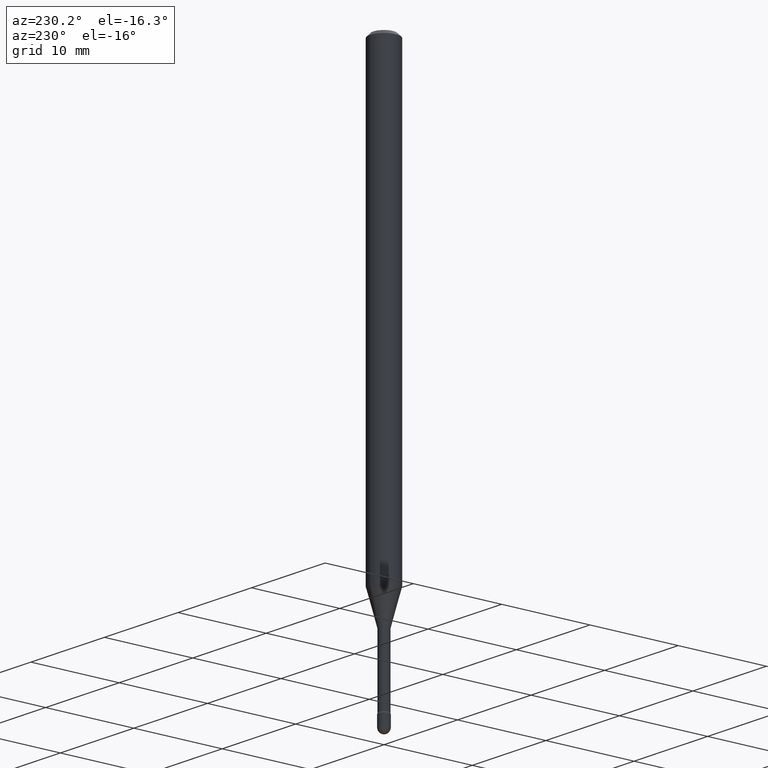
[diagram: clean part render]
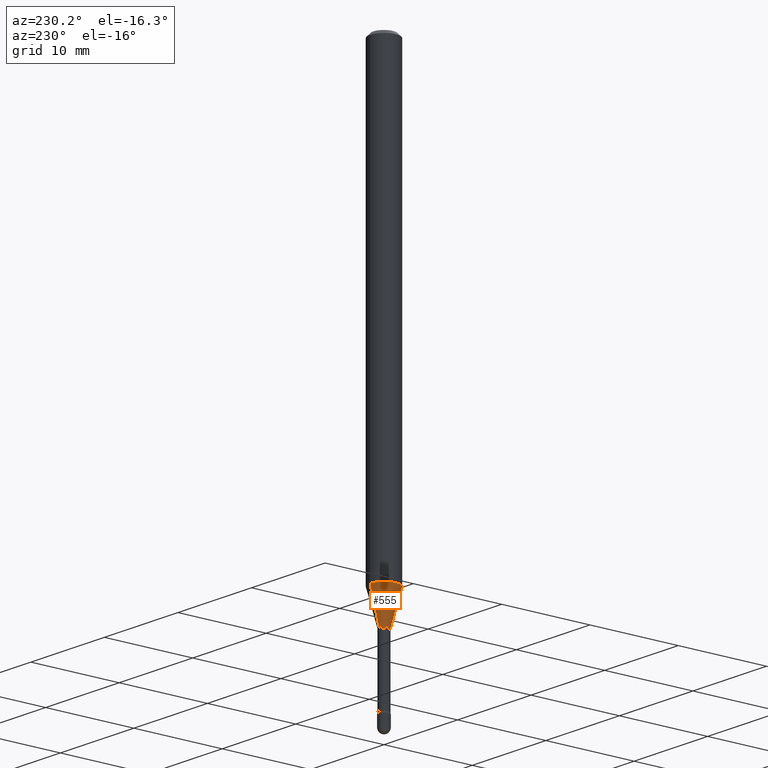
[diagram: same view with one face highlighted and labeled with its STEP entity id]
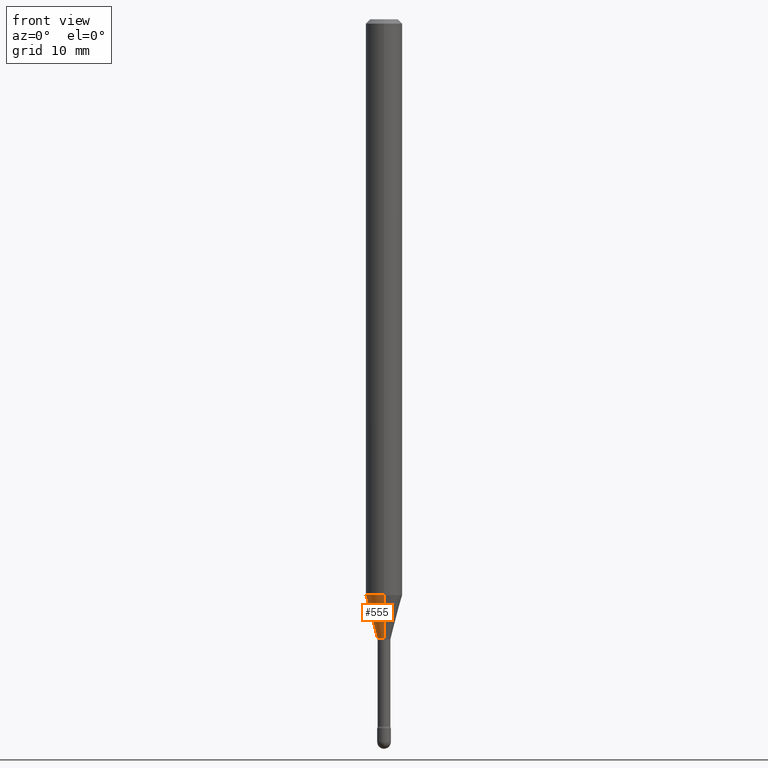
[diagram: same view with one face highlighted and labeled with its STEP entity id]
A machine part, auxiliary view. The second image highlights one B-rep face of the part: STEP entity #555.
A second angle (front view) of the same face is appended — the face is thin or edge-on in the first view.
In plain terms, the highlighted conical surface has half-angle 15 deg.
Its self-contained STEP definition (entity closure, byte-faithful):
#3 = CARTESIAN_POINT ( 'NONE',  ( -1.578925554262611837E-16, -0.02261111260567139764, -2.122092501787273378 ) ) ;
#9 = VECTOR ( 'NONE', #499, 39.37007874015749564 ) ;
#28 = CARTESIAN_POINT ( 'NONE',  ( 1.606616180941336340E-16, 0.02261111260565657616, -2.122092501787273378 ) ) ;
#33 = LINE ( 'NONE', #3, #9 ) ;
#66 = ORIENTED_EDGE ( 'NONE', *, *, #235, .F. ) ;
#75 = CARTESIAN_POINT ( 'NONE',  ( 4.825436867881536545E-29, -6.889512687067067726E-15, -1.973225147374217947 ) ) ;
#83 = DIRECTION ( 'NONE',  ( -2.445456806742390166E-29, 3.491498522728124281E-15, 1.000000000000000000 ) ) ;
#99 = VERTEX_POINT ( 'NONE', #211 ) ;
#102 = VECTOR ( 'NONE', #208, 39.37007874015747433 ) ;
#115 = CIRCLE ( 'NONE', #430, 0.06250000000000000000 ) ;
#116 = CIRCLE ( 'NONE', #376, 0.02261111260566398690 ) ;
#119 = EDGE_CURVE ( 'NONE', #99, #492, #115, .T. ) ;
#125 = DIRECTION ( 'NONE',  ( -6.982962677686265922E-15, -1.000000000000000000, 0.000000000000000000 ) ) ;
#131 = CARTESIAN_POINT ( 'NONE',  ( 5.189485553032674441E-29, -7.409282835082695352E-15, -2.122092501787273378 ) ) ;
#142 = CONICAL_SURFACE ( 'NONE', #505, 0.02261111260566398690, 0.2617993877991501295 ) ;
#151 = VERTEX_POINT ( 'NONE', #341 ) ;
#153 = VERTEX_POINT ( 'NONE', #549 ) ;
#166 = DIRECTION ( 'NONE',  ( -6.982962677686265922E-15, -1.000000000000000000, 4.370956789862821150E-15 ) ) ;
#198 = ORIENTED_EDGE ( 'NONE', *, *, #294, .T. ) ;
#208 = DIRECTION ( 'NONE',  ( 1.839019923739599526E-15, 0.2588190451025248473, 0.9659258262890673130 ) ) ;
#211 = CARTESIAN_POINT ( 'NONE',  ( 4.440892098501106381E-16, 0.06249999999999308192, -1.973225147374218169 ) ) ;
#213 = FACE_OUTER_BOUND ( 'NONE', #246, .T. ) ;
#235 = EDGE_CURVE ( 'NONE', #151, #99, #509, .T. ) ;
#246 = EDGE_LOOP ( 'NONE', ( #66, #198, #519, #414 ) ) ;
#266 = DIRECTION ( 'NONE',  ( -6.982962677686265922E-15, -1.000000000000000000, 0.000000000000000000 ) ) ;
#294 = EDGE_CURVE ( 'NONE', #151, #153, #116, .T. ) ;
#341 = CARTESIAN_POINT ( 'NONE',  ( 3.023754139721223086E-16, 0.02261111260565657616, -2.122092501787273378 ) ) ;
#351 = CARTESIAN_POINT ( 'NONE',  ( -4.364351673553435489E-16, -0.06250000000000691114, -1.973225147374217503 ) ) ;
#376 = AXIS2_PLACEMENT_3D ( 'NONE', #131, #83, #125 ) ;
#414 = ORIENTED_EDGE ( 'NONE', *, *, #119, .F. ) ;
#428 = EDGE_CURVE ( 'NONE', #153, #492, #33, .T. ) ;
#429 = DIRECTION ( 'NONE',  ( -2.445456806742390166E-29, 3.491498522728124281E-15, 1.000000000000000000 ) ) ;
#430 = AXIS2_PLACEMENT_3D ( 'NONE', #75, #429, #166 ) ;
#479 = CARTESIAN_POINT ( 'NONE',  ( 5.189485553032674441E-29, -7.409282835082695352E-15, -2.122092501787273378 ) ) ;
#492 = VERTEX_POINT ( 'NONE', #351 ) ;
#499 = DIRECTION ( 'NONE',  ( -1.807323732225328562E-15, -0.2588190451025179639, 0.9659258262890689783 ) ) ;
#505 = AXIS2_PLACEMENT_3D ( 'NONE', #479, #524, #266 ) ;
#509 = LINE ( 'NONE', #28, #102 ) ;
#519 = ORIENTED_EDGE ( 'NONE', *, *, #428, .T. ) ;
#524 = DIRECTION ( 'NONE',  ( -2.445456806742390166E-29, 3.491498522728124281E-15, 1.000000000000000000 ) ) ;
#549 = CARTESIAN_POINT ( 'NONE',  ( -1.578925554262611837E-16, -0.02261111260567139764, -2.122092501787273378 ) ) ;
#555 = ADVANCED_FACE ( 'NONE', ( #213 ), #142, .T. ) ;